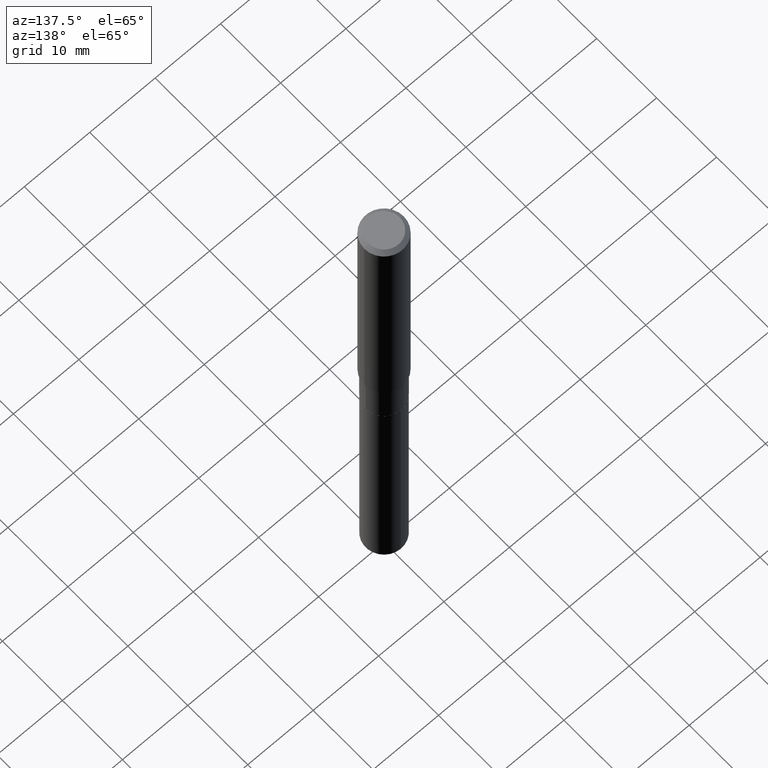
[diagram: clean part render]
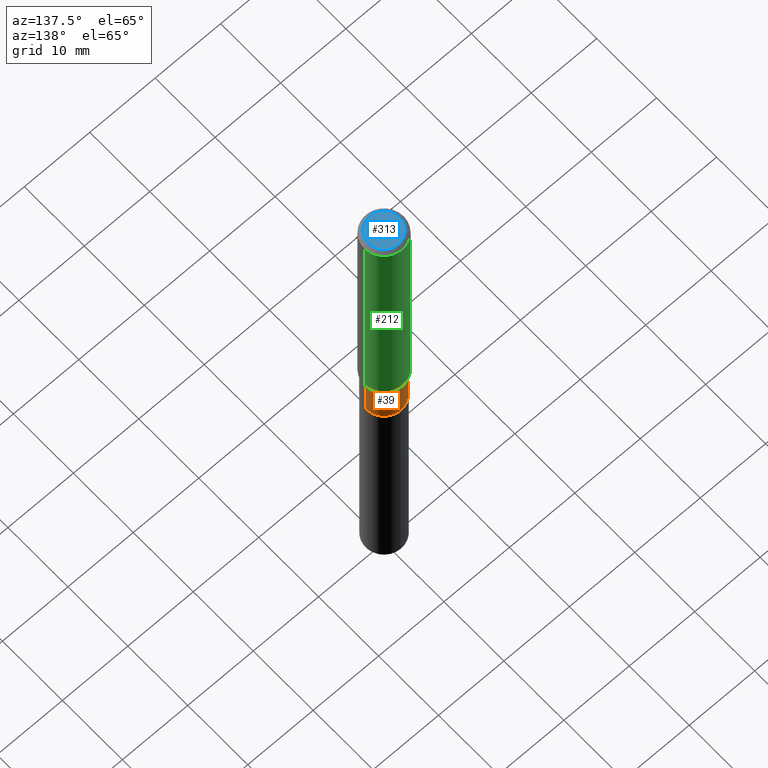
[diagram: same view with three faces highlighted in distinct colors, each labeled with its STEP entity id]
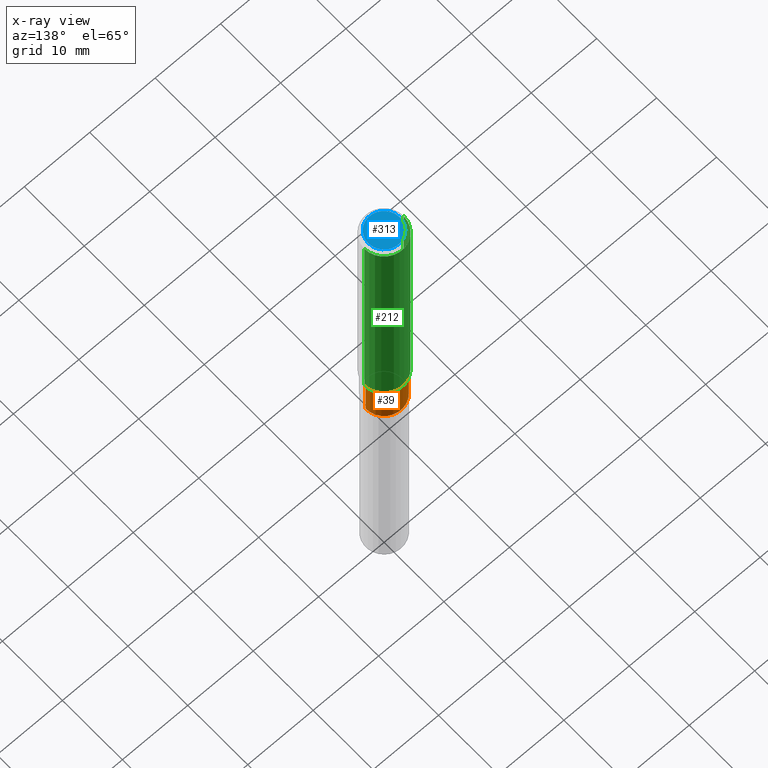
[diagram: x-ray of the same camera — body ghosted, the three highlighted faces saturated]
A machine part, auxiliary view with three faces highlighted in distinct colors.
The next image is the same camera in x-ray (body ghosted, the three faces saturated) — at least one of them is partly hidden behind the body in this view.
Their STEP definitions:

[orange] entity #39 — the highlighted cylindrical surface (edge-blend (fillet) strip) has radius 2.8003 mm, axis along (-0, 0, 1).
#4 = AXIS2_PLACEMENT_3D ( 'NONE', #280, #368, #142 ) ;
#10 = CARTESIAN_POINT ( 'NONE',  ( -0.1102500000000000008, -4.766161647848728017E-15, -1.716000000000000192 ) ) ;
#13 = EDGE_CURVE ( 'NONE', #433, #245, #105, .T. ) ;
#36 = DIRECTION ( 'NONE',  ( -2.445468806185136877E-29, 3.491481338843145188E-15, 1.000000000000000000 ) ) ;
#39 = ADVANCED_FACE ( 'NONE', ( #403 ), #442, .T. ) ;
#42 = ORIENTED_EDGE ( 'NONE', *, *, #358, .F. ) ;
#49 = CIRCLE ( 'NONE', #124, 0.1102499999999999730 ) ;
#51 = DIRECTION ( 'NONE',  ( 1.000000000000000000, -6.982962677686270655E-15, 0.000000000000000000 ) ) ;
#54 = ORIENTED_EDGE ( 'NONE', *, *, #482, .F. ) ;
#94 = CARTESIAN_POINT ( 'NONE',  ( 0.1102500000000000008, -6.761253612669749957E-15, -1.716000000000000192 ) ) ;
#98 = EDGE_CURVE ( 'NONE', #467, #433, #115, .T. ) ;
#105 = LINE ( 'NONE', #365, #207 ) ;
#115 = CIRCLE ( 'NONE', #308, 0.1102500000000000008 ) ;
#124 = AXIS2_PLACEMENT_3D ( 'NONE', #275, #165, #51 ) ;
#133 = LINE ( 'NONE', #283, #239 ) ;
#142 = DIRECTION ( 'NONE',  ( 1.000000000000000000, -6.982962677686266711E-15, 4.876176775795936353E-29 ) ) ;
#164 = ORIENTED_EDGE ( 'NONE', *, *, #13, .T. ) ;
#165 = DIRECTION ( 'NONE',  ( -2.445468806185136597E-29, 3.491481338843145583E-15, 1.000000000000000000 ) ) ;
#166 = VERTEX_POINT ( 'NONE', #437 ) ;
#207 = VECTOR ( 'NONE', #36, 39.37007874015748143 ) ;
#210 = DIRECTION ( 'NONE',  ( -2.445468806185136877E-29, 3.491481338843145188E-15, 1.000000000000000000 ) ) ;
#233 = ORIENTED_EDGE ( 'NONE', *, *, #98, .T. ) ;
#239 = VECTOR ( 'NONE', #210, 39.37007874015748143 ) ;
#241 = DIRECTION ( 'NONE',  ( -2.445468806185136597E-29, 3.491481338843145583E-15, 1.000000000000000000 ) ) ;
#245 = VERTEX_POINT ( 'NONE', #418 ) ;
#275 = CARTESIAN_POINT ( 'NONE',  ( 3.577476316568236178E-29, -5.107688050593637879E-15, -1.462900000000000089 ) ) ;
#280 = CARTESIAN_POINT ( 'NONE',  ( 0.000000000000000000, 0.000000000000000000, 0.000000000000000000 ) ) ;
#283 = CARTESIAN_POINT ( 'NONE',  ( 0.1102499999999999869, -7.698716352149107826E-16, 5.375984895315018903E-30 ) ) ;
#291 = CARTESIAN_POINT ( 'NONE',  ( 4.196424471413695360E-29, -5.991381977454838484E-15, -1.716000000000000192 ) ) ;
#308 = AXIS2_PLACEMENT_3D ( 'NONE', #291, #241, #328 ) ;
#328 = DIRECTION ( 'NONE',  ( 1.000000000000000000, -6.982962677686269077E-15, 0.000000000000000000 ) ) ;
#358 = EDGE_CURVE ( 'NONE', #166, #245, #49, .T. ) ;
#365 = CARTESIAN_POINT ( 'NONE',  ( -0.1102499999999999869, 7.833733661755103618E-16, -5.423125937006033469E-30 ) ) ;
#368 = DIRECTION ( 'NONE',  ( -2.445468806185136597E-29, 3.491481338843145583E-15, 1.000000000000000000 ) ) ;
#371 = EDGE_LOOP ( 'NONE', ( #233, #164, #42, #54 ) ) ;
#403 = FACE_OUTER_BOUND ( 'NONE', #371, .T. ) ;
#418 = CARTESIAN_POINT ( 'NONE',  ( -0.1102499999999999730, -4.766161647848728017E-15, -1.462900000000000089 ) ) ;
#433 = VERTEX_POINT ( 'NONE', #10 ) ;
#437 = CARTESIAN_POINT ( 'NONE',  ( 0.1102499999999999730, -5.877559685808549352E-15, -1.462900000000000089 ) ) ;
#442 = CYLINDRICAL_SURFACE ( 'NONE', #4, 0.1102499999999999869 ) ;
#467 = VERTEX_POINT ( 'NONE', #94 ) ;
#482 = EDGE_CURVE ( 'NONE', #467, #166, #133, .T. ) ;

[blue] entity #313 — the highlighted planar face has unit normal (0, -0, -1).
#16 = CIRCLE ( 'NONE', #201, 0.09447999999999998066 ) ;
#87 = CARTESIAN_POINT ( 'NONE',  ( 4.716267017698007905E-46, -6.733579360998555036E-32, -1.928573779297252010E-17 ) ) ;
#89 = DIRECTION ( 'NONE',  ( -1.000000000000000000, 6.982962677686265922E-15, -4.876176775795935793E-29 ) ) ;
#117 = DIRECTION ( 'NONE',  ( 1.000000000000000000, -6.982962677686267499E-15, 4.875432709231658792E-29 ) ) ;
#122 = DIRECTION ( 'NONE',  ( -2.445468806185136597E-29, 3.491481338843145583E-15, 1.000000000000000000 ) ) ;
#174 = ORIENTED_EDGE ( 'NONE', *, *, #286, .T. ) ;
#188 = PLANE ( 'NONE',  #439 ) ;
#193 = VERTEX_POINT ( 'NONE', #222 ) ;
#201 = AXIS2_PLACEMENT_3D ( 'NONE', #87, #122, #421 ) ;
#222 = CARTESIAN_POINT ( 'NONE',  ( 0.09447999999999998066, -7.704367267948738690E-16, -1.928573779296752193E-17 ) ) ;
#260 = FACE_OUTER_BOUND ( 'NONE', #346, .T. ) ;
#266 = DIRECTION ( 'NONE',  ( 2.438088387897960049E-29, -3.491481338843145188E-15, -1.000000000000000000 ) ) ;
#286 = EDGE_CURVE ( 'NONE', #321, #193, #363, .T. ) ;
#298 = CARTESIAN_POINT ( 'NONE',  ( 4.716267017698007905E-46, -6.733579360998555036E-32, -1.928573779297252010E-17 ) ) ;
#313 = ADVANCED_FACE ( 'NONE', ( #260 ), #188, .F. ) ;
#316 = ORIENTED_EDGE ( 'NONE', *, *, #387, .T. ) ;
#321 = VERTEX_POINT ( 'NONE', #469 ) ;
#346 = EDGE_LOOP ( 'NONE', ( #174, #316 ) ) ;
#363 = CIRCLE ( 'NONE', #377, 0.09447999999999998066 ) ;
#377 = AXIS2_PLACEMENT_3D ( 'NONE', #298, #449, #117 ) ;
#387 = EDGE_CURVE ( 'NONE', #193, #321, #16, .T. ) ;
#419 = CARTESIAN_POINT ( 'NONE',  ( 2.358133508849003952E-46, -3.366789680499277518E-32, -9.642868896486260050E-18 ) ) ;
#421 = DIRECTION ( 'NONE',  ( 1.000000000000000000, -6.982962677686267499E-15, 4.875432709231658792E-29 ) ) ;
#439 = AXIS2_PLACEMENT_3D ( 'NONE', #419, #266, #89 ) ;
#449 = DIRECTION ( 'NONE',  ( -2.445468806185136597E-29, 3.491481338843145583E-15, 1.000000000000000000 ) ) ;
#469 = CARTESIAN_POINT ( 'NONE',  ( -0.09447999999999998066, 7.009847083995354710E-16, -1.928573779297727792E-17 ) ) ;

[green] entity #212 — the highlighted cylindrical surface (edge-blend (fillet) strip) has radius 2.9997 mm, axis along (-0, 0, 1).
#35 = VECTOR ( 'NONE', #186, 39.37007874015748143 ) ;
#61 = VERTEX_POINT ( 'NONE', #70 ) ;
#70 = CARTESIAN_POINT ( 'NONE',  ( -0.1180999999999999966, -1.742223384720917499E-15, -0.02362000000000014088 ) ) ;
#75 = AXIS2_PLACEMENT_3D ( 'NONE', #337, #220, #190 ) ;
#76 = CIRCLE ( 'NONE', #424, 0.1181000000000001632 ) ;
#84 = CARTESIAN_POINT ( 'NONE',  ( 0.1181000000000001632, -5.904967814318468141E-15, -1.455049999999999732 ) ) ;
#111 = DIRECTION ( 'NONE',  ( -2.445468806185136597E-29, 3.491481338843145583E-15, 1.000000000000000000 ) ) ;
#125 = VERTEX_POINT ( 'NONE', #476 ) ;
#130 = LINE ( 'NONE', #272, #156 ) ;
#155 = CYLINDRICAL_SURFACE ( 'NONE', #75, 0.1181000000000000799 ) ;
#156 = VECTOR ( 'NONE', #429, 39.37007874015748143 ) ;
#157 = DIRECTION ( 'NONE',  ( 1.000000000000000000, -6.982962677686266711E-15, 0.000000000000000000 ) ) ;
#186 = DIRECTION ( 'NONE',  ( -2.445468806185136877E-29, 3.491481338843145188E-15, 1.000000000000000000 ) ) ;
#190 = DIRECTION ( 'NONE',  ( 1.000000000000000000, -6.982962677686266711E-15, 4.876176775795936353E-29 ) ) ;
#192 = DIRECTION ( 'NONE',  ( -2.445468806185136597E-29, 3.491481338843145583E-15, 1.000000000000000000 ) ) ;
#212 = ADVANCED_FACE ( 'NONE', ( #382 ), #155, .T. ) ;
#220 = DIRECTION ( 'NONE',  ( -2.445468806185136597E-29, 3.491481338843145583E-15, 1.000000000000000000 ) ) ;
#227 = CARTESIAN_POINT ( 'NONE',  ( 5.776197320209327532E-31, -8.246878922347559293E-17, -0.02362000000000014088 ) ) ;
#238 = EDGE_LOOP ( 'NONE', ( #318, #348, #250, #338 ) ) ;
#246 = AXIS2_PLACEMENT_3D ( 'NONE', #227, #192, #157 ) ;
#250 = ORIENTED_EDGE ( 'NONE', *, *, #333, .F. ) ;
#252 = DIRECTION ( 'NONE',  ( 1.000000000000000000, -6.982962677686263555E-15, 0.000000000000000000 ) ) ;
#256 = LINE ( 'NONE', #453, #35 ) ;
#258 = CARTESIAN_POINT ( 'NONE',  ( -0.1181000000000001632, -4.241128951151038526E-15, -1.455049999999999732 ) ) ;
#259 = EDGE_CURVE ( 'NONE', #284, #125, #256, .T. ) ;
#272 = CARTESIAN_POINT ( 'NONE',  ( -0.1181000000000000799, 8.391509709326788873E-16, -5.809262341591047988E-30 ) ) ;
#284 = VERTEX_POINT ( 'NONE', #84 ) ;
#289 = EDGE_CURVE ( 'NONE', #284, #293, #76, .T. ) ;
#293 = VERTEX_POINT ( 'NONE', #258 ) ;
#318 = ORIENTED_EDGE ( 'NONE', *, *, #289, .T. ) ;
#333 = EDGE_CURVE ( 'NONE', #125, #61, #417, .T. ) ;
#337 = CARTESIAN_POINT ( 'NONE',  ( 0.000000000000000000, 0.000000000000000000, 0.000000000000000000 ) ) ;
#338 = ORIENTED_EDGE ( 'NONE', *, *, #259, .F. ) ;
#348 = ORIENTED_EDGE ( 'NONE', *, *, #458, .T. ) ;
#382 = FACE_OUTER_BOUND ( 'NONE', #238, .T. ) ;
#417 = CIRCLE ( 'NONE', #246, 0.1180999999999999966 ) ;
#424 = AXIS2_PLACEMENT_3D ( 'NONE', #456, #111, #252 ) ;
#429 = DIRECTION ( 'NONE',  ( -2.445468806185136877E-29, 3.491481338843145188E-15, 1.000000000000000000 ) ) ;
#453 = CARTESIAN_POINT ( 'NONE',  ( 0.1181000000000000799, -8.246878922347486570E-16, 5.758764772215004644E-30 ) ) ;
#456 = CARTESIAN_POINT ( 'NONE',  ( 3.558279386439682894E-29, -5.080279922083718301E-15, -1.455049999999999732 ) ) ;
#458 = EDGE_CURVE ( 'NONE', #293, #61, #130, .T. ) ;
#476 = CARTESIAN_POINT ( 'NONE',  ( 0.1180999999999999966, -9.071566814582237199E-16, -0.02362000000000014088 ) ) ;